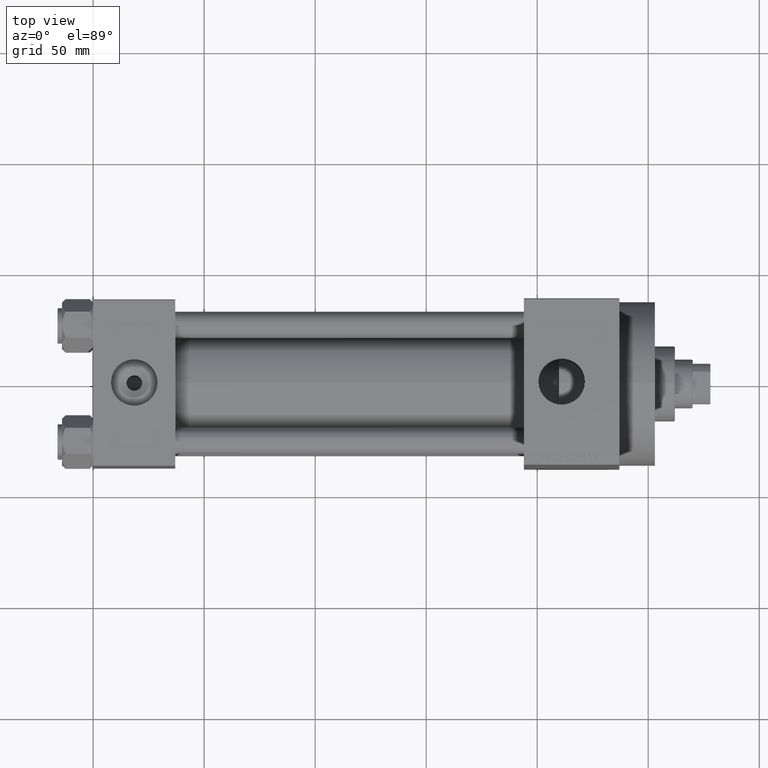
[diagram: clean part render]
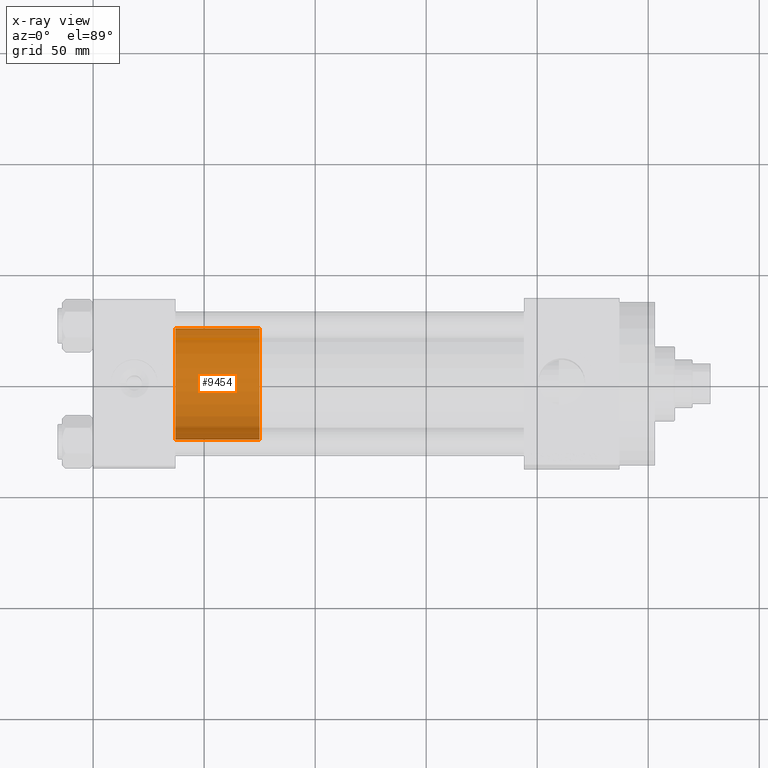
[diagram: x-ray — body ghosted, one internal face saturated and labeled with its STEP entity id]
A machine part, top view, then the same camera in x-ray: the body is ghosted and one INTERNAL B-rep face — a face not visible from any outside direction — is saturated and labeled: STEP entity #9454.
In plain terms, the highlighted cylindrical surface (partial cylindrical patch) has radius 25 mm, axis along (-1, 0, 0).
Its self-contained STEP definition (entity closure, byte-faithful):
#1886 = ORIENTED_EDGE ( 'NONE', *, *, #11924, .F. ) ;
#3181 = AXIS2_PLACEMENT_3D ( 'NONE', #10277, #17486, #24207 ) ;
#6405 = VERTEX_POINT ( 'NONE', #18290 ) ;
#7038 = CARTESIAN_POINT ( 'NONE',  ( -25.00000000000000000, 0.000000000000000000, 38.00000000000000000 ) ) ;
#9454 = ADVANCED_FACE ( 'NONE', ( #11566 ), #37686, .T. ) ;
#9906 = CARTESIAN_POINT ( 'NONE',  ( 0.000000000000000000, 0.000000000000000000, 38.00000000000000000 ) ) ;
#10043 = EDGE_LOOP ( 'NONE', ( #1886, #16643, #37697, #17326 ) ) ;
#10277 = CARTESIAN_POINT ( 'NONE',  ( 0.000000000000000000, 0.000000000000000000, 0.000000000000000000 ) ) ;
#11566 = FACE_OUTER_BOUND ( 'NONE', #10043, .T. ) ;
#11924 = EDGE_CURVE ( 'NONE', #34454, #32309, #15969, .T. ) ;
#12793 = DIRECTION ( 'NONE',  ( 0.000000000000000000, 0.000000000000000000, 1.000000000000000000 ) ) ;
#15969 = CIRCLE ( 'NONE', #32819, 25.00000000000000000 ) ;
#16643 = ORIENTED_EDGE ( 'NONE', *, *, #39570, .T. ) ;
#17326 = ORIENTED_EDGE ( 'NONE', *, *, #40291, .F. ) ;
#17486 = DIRECTION ( 'NONE',  ( 0.000000000000000000, 0.000000000000000000, 1.000000000000000000 ) ) ;
#18290 = CARTESIAN_POINT ( 'NONE',  ( -25.00000000000000000, 0.000000000000000000, 0.000000000000000000 ) ) ;
#18585 = CARTESIAN_POINT ( 'NONE',  ( -25.00000000000000000, 0.000000000000000000, 38.00000000000000000 ) ) ;
#20067 = VECTOR ( 'NONE', #33659, 1000.000000000000000 ) ;
#21815 = LINE ( 'NONE', #25164, #30746 ) ;
#24129 = CARTESIAN_POINT ( 'NONE',  ( 25.00000000000000000, 3.061616997868383043E-15, 38.00000000000000000 ) ) ;
#24207 = DIRECTION ( 'NONE',  ( 1.000000000000000000, 0.000000000000000000, 0.000000000000000000 ) ) ;
#25164 = CARTESIAN_POINT ( 'NONE',  ( 25.00000000000000000, 3.061616997868383043E-15, 38.00000000000000000 ) ) ;
#25303 = CIRCLE ( 'NONE', #3181, 25.00000000000000000 ) ;
#26193 = DIRECTION ( 'NONE',  ( -1.000000000000000000, 0.000000000000000000, 0.000000000000000000 ) ) ;
#27080 = CARTESIAN_POINT ( 'NONE',  ( 25.00000000000000000, 3.061616997868383043E-15, 0.000000000000000000 ) ) ;
#29474 = DIRECTION ( 'NONE',  ( -0.000000000000000000, -0.000000000000000000, -1.000000000000000000 ) ) ;
#30746 = VECTOR ( 'NONE', #29474, 1000.000000000000000 ) ;
#32093 = AXIS2_PLACEMENT_3D ( 'NONE', #41297, #34078, #26193 ) ;
#32309 = VERTEX_POINT ( 'NONE', #7038 ) ;
#32819 = AXIS2_PLACEMENT_3D ( 'NONE', #9906, #12793, #42753 ) ;
#32957 = LINE ( 'NONE', #18585, #20067 ) ;
#33659 = DIRECTION ( 'NONE',  ( -0.000000000000000000, -0.000000000000000000, -1.000000000000000000 ) ) ;
#34078 = DIRECTION ( 'NONE',  ( -0.000000000000000000, -0.000000000000000000, -1.000000000000000000 ) ) ;
#34454 = VERTEX_POINT ( 'NONE', #24129 ) ;
#36610 = EDGE_CURVE ( 'NONE', #43842, #6405, #25303, .T. ) ;
#37686 = CYLINDRICAL_SURFACE ( 'NONE', #32093, 25.00000000000000000 ) ;
#37697 = ORIENTED_EDGE ( 'NONE', *, *, #36610, .T. ) ;
#39570 = EDGE_CURVE ( 'NONE', #34454, #43842, #21815, .T. ) ;
#40291 = EDGE_CURVE ( 'NONE', #32309, #6405, #32957, .T. ) ;
#41297 = CARTESIAN_POINT ( 'NONE',  ( 0.000000000000000000, 0.000000000000000000, 38.00000000000000000 ) ) ;
#42753 = DIRECTION ( 'NONE',  ( 1.000000000000000000, 0.000000000000000000, 0.000000000000000000 ) ) ;
#43842 = VERTEX_POINT ( 'NONE', #27080 ) ;